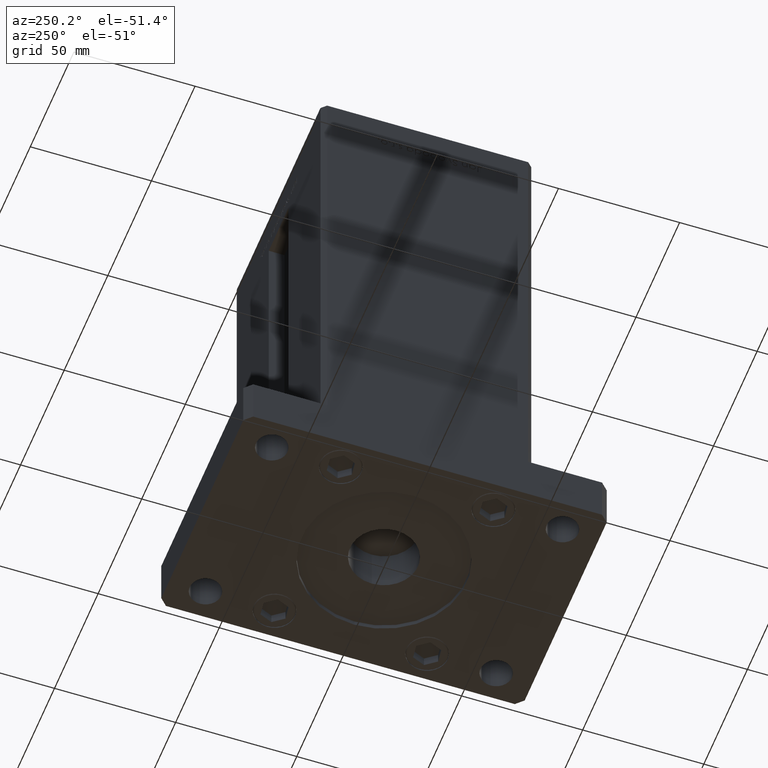
[diagram: clean part render]
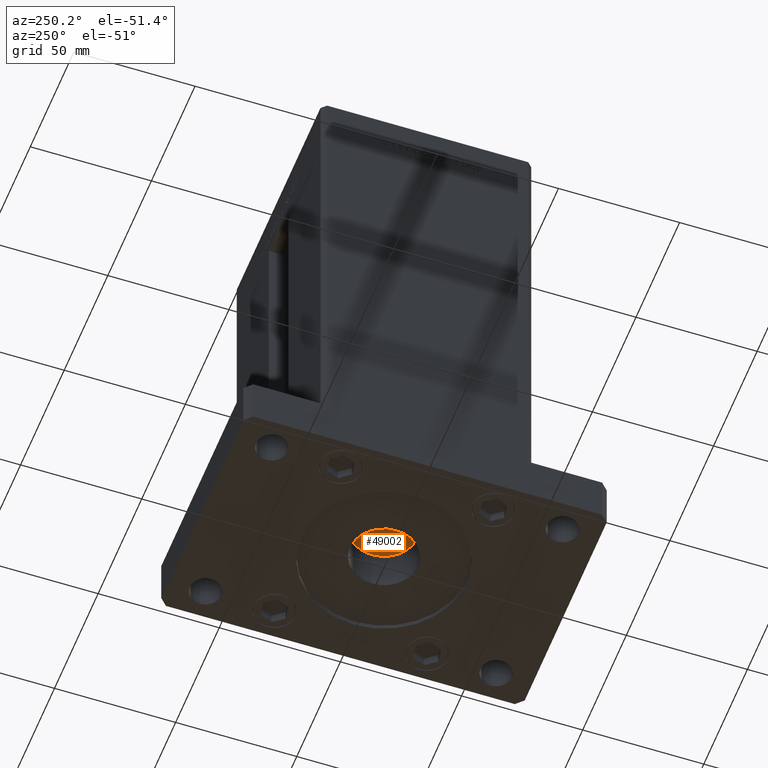
[diagram: same view with one face highlighted and labeled with its STEP entity id]
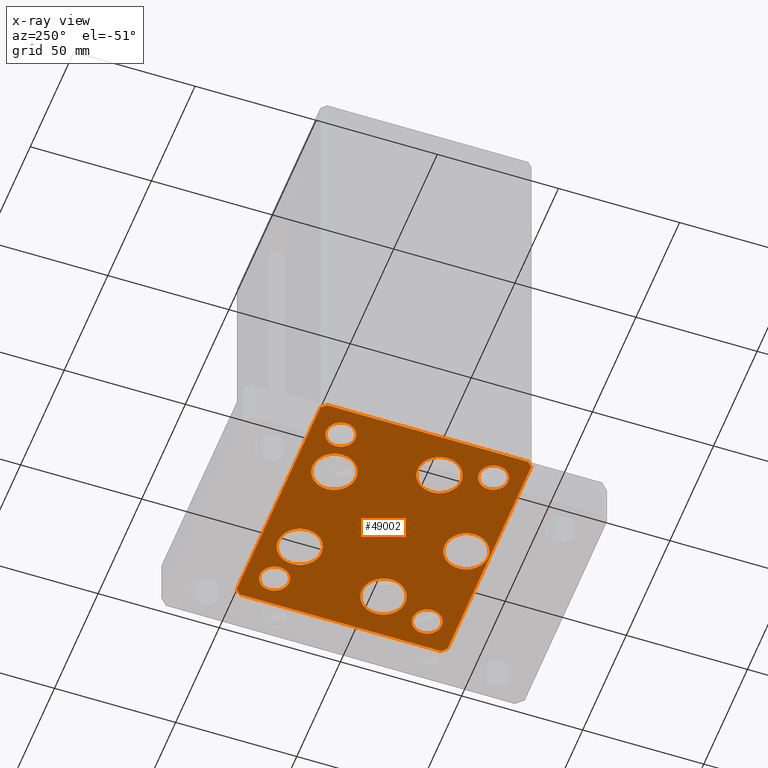
[diagram: x-ray of the same camera — body ghosted, the highlighted face saturated]
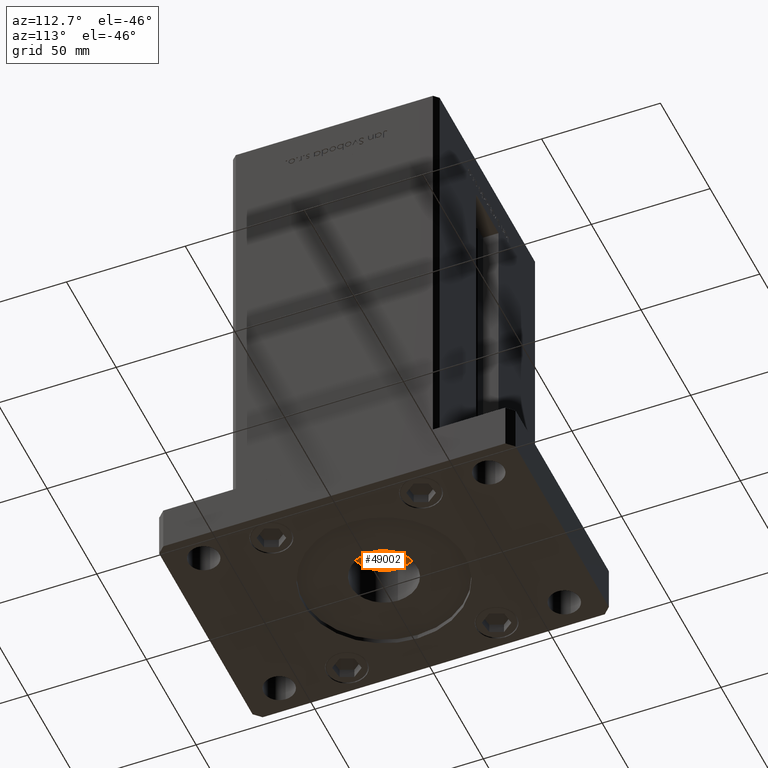
[diagram: same view with one face highlighted and labeled with its STEP entity id]
A machine part, auxiliary view. The second image highlights one B-rep face of the part: STEP entity #49002.
The next image is the same camera in x-ray: the body ghosted, the highlighted face saturated — about 0% of this face is hidden behind the body in this view.
A second angle (auxiliary view) of the same face is appended — the face is thin or edge-on in the first view.
In plain terms, the highlighted planar face has unit normal (0, 0, -1).
Its self-contained STEP definition (entity closure, byte-faithful):
#133 = DIRECTION ( 'NONE',  ( -0.7071067811865463515, -0.7071067811865487940, 0.000000000000000000 ) ) ;
#158 = CARTESIAN_POINT ( 'NONE',  ( 47.99999999999990763, 43.50000000000000000, 0.000000000000000000 ) ) ;
#187 = VERTEX_POINT ( 'NONE', #48679 ) ;
#309 = VERTEX_POINT ( 'NONE', #22583 ) ;
#524 = EDGE_CURVE ( 'NONE', #7321, #39621, #31027, .T. ) ;
#1538 = AXIS2_PLACEMENT_3D ( 'NONE', #4826, #34404, #17044 ) ;
#1663 = CARTESIAN_POINT ( 'NONE',  ( -32.05550741379015278, -11.33333333333333925, 0.000000000000000000 ) ) ;
#1705 = CARTESIAN_POINT ( 'NONE',  ( -8.999999999999996447, -34.00000000000000000, 0.000000000000000000 ) ) ;
#1864 = ORIENTED_EDGE ( 'NONE', *, *, #44948, .T. ) ;
#2038 = AXIS2_PLACEMENT_3D ( 'NONE', #33209, #12563, #20989 ) ;
#2092 = CARTESIAN_POINT ( 'NONE',  ( 19.82068048781373193, 27.62500000000000000, 0.000000000000000000 ) ) ;
#2469 = CARTESIAN_POINT ( 'NONE',  ( 23.05550741379014923, -11.33333333333333037, 0.000000000000000000 ) ) ;
#2698 = AXIS2_PLACEMENT_3D ( 'NONE', #9425, #37933, #45797 ) ;
#2813 = CIRCLE ( 'NONE', #14204, 6.000000000000005329 ) ;
#3299 = LINE ( 'NONE', #48633, #32718 ) ;
#3706 = CIRCLE ( 'NONE', #17587, 9.000000000000001776 ) ;
#3762 = ORIENTED_EDGE ( 'NONE', *, *, #18005, .F. ) ;
#4061 = DIRECTION ( 'NONE',  ( 1.000000000000000000, 0.000000000000000000, 0.000000000000000000 ) ) ;
#4392 = DIRECTION ( 'NONE',  ( 0.000000000000000000, -0.000000000000000000, -1.000000000000000000 ) ) ;
#4794 = VERTEX_POINT ( 'NONE', #14876 ) ;
#4826 = CARTESIAN_POINT ( 'NONE',  ( 4.163799117101000559E-15, -34.00000000000000000, 0.000000000000000000 ) ) ;
#5037 = FACE_BOUND ( 'NONE', #30426, .T. ) ;
#5132 = ORIENTED_EDGE ( 'NONE', *, *, #524, .T. ) ;
#5363 = CARTESIAN_POINT ( 'NONE',  ( 32.00000000000000000, -31.49999999999999289, 0.000000000000000000 ) ) ;
#5547 = CARTESIAN_POINT ( 'NONE',  ( 32.00000000000000000, 31.49999999999999289, 0.000000000000000000 ) ) ;
#5628 = DIRECTION ( 'NONE',  ( 1.000000000000000000, 0.000000000000000000, 0.000000000000000000 ) ) ;
#5721 = EDGE_CURVE ( 'NONE', #17384, #19473, #45203, .T. ) ;
#5865 = CARTESIAN_POINT ( 'NONE',  ( -41.05550741379015278, -11.33333333333333925, 0.000000000000000000 ) ) ;
#6093 = CARTESIAN_POINT ( 'NONE',  ( 0.000000000000000000, 0.000000000000000000, 0.000000000000000000 ) ) ;
#6283 = ORIENTED_EDGE ( 'NONE', *, *, #9644, .T. ) ;
#6416 = DIRECTION ( 'NONE',  ( 1.000000000000000000, 0.000000000000000000, 0.000000000000000000 ) ) ;
#6465 = CARTESIAN_POINT ( 'NONE',  ( 41.05550741379015278, -11.33333333333332860, 0.000000000000000000 ) ) ;
#6485 = DIRECTION ( 'NONE',  ( 0.000000000000000000, -0.000000000000000000, -1.000000000000000000 ) ) ;
#6631 = CIRCLE ( 'NONE', #25837, 5.999999999999998224 ) ;
#6783 = ORIENTED_EDGE ( 'NONE', *, *, #19356, .T. ) ;
#6803 = AXIS2_PLACEMENT_3D ( 'NONE', #2092, #38492, #18659 ) ;
#7200 = CIRCLE ( 'NONE', #37537, 5.999999999999998224 ) ;
#7321 = VERTEX_POINT ( 'NONE', #1705 ) ;
#7585 = ORIENTED_EDGE ( 'NONE', *, *, #5721, .T. ) ;
#7947 = CARTESIAN_POINT ( 'NONE',  ( -44.00000000000000000, 31.50000000000000000, 0.000000000000000000 ) ) ;
#7969 = ORIENTED_EDGE ( 'NONE', *, *, #10977, .T. ) ;
#8390 = VERTEX_POINT ( 'NONE', #14937 ) ;
#8440 = DIRECTION ( 'NONE',  ( 8.360113137237628665E-17, -1.000000000000000000, 0.000000000000000000 ) ) ;
#8467 = DIRECTION ( 'NONE',  ( 1.000000000000000000, 0.000000000000000000, 0.000000000000000000 ) ) ;
#8606 = EDGE_CURVE ( 'NONE', #4794, #52349, #9531, .T. ) ;
#8718 = CIRCLE ( 'NONE', #36460, 9.000000000000000000 ) ;
#8749 = AXIS2_PLACEMENT_3D ( 'NONE', #32631, #4392, #28289 ) ;
#8770 = ORIENTED_EDGE ( 'NONE', *, *, #32766, .T. ) ;
#8848 = DIRECTION ( 'NONE',  ( -1.000000000000000000, -3.614007241618350743E-16, 0.000000000000000000 ) ) ;
#9116 = FACE_BOUND ( 'NONE', #34373, .T. ) ;
#9382 = FACE_BOUND ( 'NONE', #31481, .T. ) ;
#9425 = CARTESIAN_POINT ( 'NONE',  ( 38.00000000000000000, 31.49999999999999289, 0.000000000000000000 ) ) ;
#9524 = VECTOR ( 'NONE', #11251, 1000.000000000000114 ) ;
#9531 = CIRCLE ( 'NONE', #30337, 5.999999999999998224 ) ;
#9644 = EDGE_CURVE ( 'NONE', #8390, #35909, #8718, .T. ) ;
#10457 = EDGE_CURVE ( 'NONE', #35909, #8390, #40843, .T. ) ;
#10973 = LINE ( 'NONE', #14776, #9524 ) ;
#10977 = EDGE_CURVE ( 'NONE', #187, #35301, #19905, .T. ) ;
#11079 = DIRECTION ( 'NONE',  ( 1.000000000000000000, 0.000000000000000000, 0.000000000000000000 ) ) ;
#11098 = VERTEX_POINT ( 'NONE', #2469 ) ;
#11251 = DIRECTION ( 'NONE',  ( 0.7071067811865474617, -0.7071067811865474617, 0.000000000000000000 ) ) ;
#11726 = ORIENTED_EDGE ( 'NONE', *, *, #21424, .T. ) ;
#12044 = AXIS2_PLACEMENT_3D ( 'NONE', #1663, #47003, #43727 ) ;
#12159 = CARTESIAN_POINT ( 'NONE',  ( 49.99999999999992184, 41.49999999999998579, 0.000000000000000000 ) ) ;
#12265 = CIRCLE ( 'NONE', #2698, 5.999999999999998224 ) ;
#12563 = DIRECTION ( 'NONE',  ( -0.000000000000000000, 0.000000000000000000, 1.000000000000000000 ) ) ;
#13180 = FACE_BOUND ( 'NONE', #51750, .T. ) ;
#13468 = CARTESIAN_POINT ( 'NONE',  ( -44.00000000000000000, -31.50000000000000000, 0.000000000000000000 ) ) ;
#13526 = ORIENTED_EDGE ( 'NONE', *, *, #31426, .T. ) ;
#13710 = DIRECTION ( 'NONE',  ( 1.000000000000000000, 0.000000000000000000, 0.000000000000000000 ) ) ;
#14093 = ORIENTED_EDGE ( 'NONE', *, *, #37130, .T. ) ;
#14163 = CIRCLE ( 'NONE', #2038, 5.999999999999998224 ) ;
#14204 = AXIS2_PLACEMENT_3D ( 'NONE', #41917, #16674, #49780 ) ;
#14776 = CARTESIAN_POINT ( 'NONE',  ( -50.00000000000000000, -41.50000000000000000, 0.000000000000000000 ) ) ;
#14876 = CARTESIAN_POINT ( 'NONE',  ( -32.00000000000000000, 31.50000000000000000, 0.000000000000000000 ) ) ;
#14937 = CARTESIAN_POINT ( 'NONE',  ( -10.82068048781373903, 27.62499999999999645, 0.000000000000000000 ) ) ;
#15150 = CARTESIAN_POINT ( 'NONE',  ( -19.82068048781373903, 27.62499999999999645, 0.000000000000000000 ) ) ;
#15630 = CARTESIAN_POINT ( 'NONE',  ( -48.00000000000000711, 43.49999999999996447, 0.000000000000000000 ) ) ;
#15687 = VECTOR ( 'NONE', #24259, 1000.000000000000000 ) ;
#16145 = EDGE_LOOP ( 'NONE', ( #26928, #11726 ) ) ;
#16342 = CARTESIAN_POINT ( 'NONE',  ( -32.05550741379015278, -11.33333333333333925, 0.000000000000000000 ) ) ;
#16496 = CARTESIAN_POINT ( 'NONE',  ( -19.82068048781373903, 27.62499999999999645, 0.000000000000000000 ) ) ;
#16674 = DIRECTION ( 'NONE',  ( 0.000000000000000000, -0.000000000000000000, -1.000000000000000000 ) ) ;
#17044 = DIRECTION ( 'NONE',  ( 1.000000000000000000, 0.000000000000000000, 0.000000000000000000 ) ) ;
#17073 = VECTOR ( 'NONE', #23434, 1000.000000000000000 ) ;
#17236 = CIRCLE ( 'NONE', #12044, 9.000000000000001776 ) ;
#17384 = VERTEX_POINT ( 'NONE', #19508 ) ;
#17587 = AXIS2_PLACEMENT_3D ( 'NONE', #43674, #6485, #48019 ) ;
#17653 = ORIENTED_EDGE ( 'NONE', *, *, #51005, .T. ) ;
#17964 = CARTESIAN_POINT ( 'NONE',  ( 47.99999999999999289, -43.50000000000001421, 0.000000000000000000 ) ) ;
#18005 = EDGE_CURVE ( 'NONE', #52349, #4794, #14163, .T. ) ;
#18659 = DIRECTION ( 'NONE',  ( 1.000000000000000000, 0.000000000000000000, 0.000000000000000000 ) ) ;
#19033 = LINE ( 'NONE', #17964, #46687 ) ;
#19356 = EDGE_CURVE ( 'NONE', #309, #32256, #2813, .T. ) ;
#19357 = CARTESIAN_POINT ( 'NONE',  ( -47.99999999999999289, -43.50000000000001421, 0.000000000000000000 ) ) ;
#19473 = VERTEX_POINT ( 'NONE', #34301 ) ;
#19508 = CARTESIAN_POINT ( 'NONE',  ( -48.00000000000000711, 43.49999999999996447, 0.000000000000000000 ) ) ;
#19905 = LINE ( 'NONE', #44866, #15687 ) ;
#19949 = AXIS2_PLACEMENT_3D ( 'NONE', #16342, #48654, #20154 ) ;
#20154 = DIRECTION ( 'NONE',  ( 1.000000000000000000, 0.000000000000000000, 0.000000000000000000 ) ) ;
#20191 = ORIENTED_EDGE ( 'NONE', *, *, #41209, .T. ) ;
#20509 = CARTESIAN_POINT ( 'NONE',  ( 47.99999999999999289, -43.50000000000001421, 0.000000000000000000 ) ) ;
#20691 = VECTOR ( 'NONE', #8848, 1000.000000000000000 ) ;
#20790 = CARTESIAN_POINT ( 'NONE',  ( -47.99999999999999289, -43.50000000000001421, 0.000000000000000000 ) ) ;
#20863 = CARTESIAN_POINT ( 'NONE',  ( 38.00000000000000000, -31.49999999999999289, 0.000000000000000000 ) ) ;
#20989 = DIRECTION ( 'NONE',  ( 1.000000000000000000, 0.000000000000000000, 0.000000000000000000 ) ) ;
#21424 = EDGE_CURVE ( 'NONE', #27898, #11098, #3706, .T. ) ;
#21516 = CARTESIAN_POINT ( 'NONE',  ( 47.99999999999990763, 43.50000000000000000, 0.000000000000000000 ) ) ;
#21619 = EDGE_CURVE ( 'NONE', #25599, #28382, #7200, .T. ) ;
#21724 = ORIENTED_EDGE ( 'NONE', *, *, #41195, .T. ) ;
#22203 = CARTESIAN_POINT ( 'NONE',  ( 38.00000000000000000, 31.49999999999999289, 0.000000000000000000 ) ) ;
#22583 = CARTESIAN_POINT ( 'NONE',  ( -31.99999999999998579, -31.50000000000000000, 0.000000000000000000 ) ) ;
#22671 = FACE_BOUND ( 'NONE', #40717, .T. ) ;
#23342 = DIRECTION ( 'NONE',  ( 0.000000000000000000, -0.000000000000000000, -1.000000000000000000 ) ) ;
#23434 = DIRECTION ( 'NONE',  ( 1.000000000000000000, 0.000000000000000000, 0.000000000000000000 ) ) ;
#23821 = CARTESIAN_POINT ( 'NONE',  ( 49.99999999999992184, 41.49999999999998579, 0.000000000000000000 ) ) ;
#24021 = CIRCLE ( 'NONE', #37883, 9.000000000000000000 ) ;
#24259 = DIRECTION ( 'NONE',  ( -1.003213576468515193E-15, 1.000000000000000000, 0.000000000000000000 ) ) ;
#24332 = DIRECTION ( 'NONE',  ( 0.000000000000000000, -0.000000000000000000, -1.000000000000000000 ) ) ;
#24386 = DIRECTION ( 'NONE',  ( 0.000000000000000000, -0.000000000000000000, -1.000000000000000000 ) ) ;
#24872 = AXIS2_PLACEMENT_3D ( 'NONE', #30683, #23342, #48034 ) ;
#25599 = VERTEX_POINT ( 'NONE', #39033 ) ;
#25837 = AXIS2_PLACEMENT_3D ( 'NONE', #35193, #40348, #6416 ) ;
#26056 = ORIENTED_EDGE ( 'NONE', *, *, #10457, .T. ) ;
#26078 = EDGE_LOOP ( 'NONE', ( #35341, #49097 ) ) ;
#26164 = VERTEX_POINT ( 'NONE', #48043 ) ;
#26217 = FACE_BOUND ( 'NONE', #31921, .T. ) ;
#26928 = ORIENTED_EDGE ( 'NONE', *, *, #35521, .T. ) ;
#27770 = LINE ( 'NONE', #19357, #17073 ) ;
#27898 = VERTEX_POINT ( 'NONE', #6465 ) ;
#28289 = DIRECTION ( 'NONE',  ( 1.000000000000000000, 0.000000000000000000, 0.000000000000000000 ) ) ;
#28293 = VERTEX_POINT ( 'NONE', #20509 ) ;
#28382 = VERTEX_POINT ( 'NONE', #5547 ) ;
#28412 = DIRECTION ( 'NONE',  ( -0.7071067811865474617, 0.7071067811865474617, 0.000000000000000000 ) ) ;
#28660 = CARTESIAN_POINT ( 'NONE',  ( 32.05550741379015278, -11.33333333333333037, 0.000000000000000000 ) ) ;
#29148 = ORIENTED_EDGE ( 'NONE', *, *, #31844, .T. ) ;
#29745 = DIRECTION ( 'NONE',  ( -0.000000000000000000, 0.000000000000000000, 1.000000000000000000 ) ) ;
#30337 = AXIS2_PLACEMENT_3D ( 'NONE', #36642, #33376, #4061 ) ;
#30426 = EDGE_LOOP ( 'NONE', ( #43926, #53046 ) ) ;
#30683 = CARTESIAN_POINT ( 'NONE',  ( -37.99999999999999289, -31.50000000000000000, 0.000000000000000000 ) ) ;
#30717 = DIRECTION ( 'NONE',  ( 0.7071067811865463515, 0.7071067811865487940, 0.000000000000000000 ) ) ;
#31027 = CIRCLE ( 'NONE', #1538, 9.000000000000000000 ) ;
#31426 = EDGE_CURVE ( 'NONE', #32256, #309, #36985, .T. ) ;
#31481 = EDGE_LOOP ( 'NONE', ( #17653, #42231 ) ) ;
#31517 = VERTEX_POINT ( 'NONE', #35819 ) ;
#31550 = ORIENTED_EDGE ( 'NONE', *, *, #8606, .F. ) ;
#31844 = EDGE_CURVE ( 'NONE', #35301, #53297, #49034, .T. ) ;
#31904 = AXIS2_PLACEMENT_3D ( 'NONE', #28660, #24332, #32195 ) ;
#31921 = EDGE_LOOP ( 'NONE', ( #31550, #3762 ) ) ;
#32195 = DIRECTION ( 'NONE',  ( 1.000000000000000000, 0.000000000000000000, 0.000000000000000000 ) ) ;
#32256 = VERTEX_POINT ( 'NONE', #13468 ) ;
#32631 = CARTESIAN_POINT ( 'NONE',  ( 19.82068048781373193, 27.62500000000000000, 0.000000000000000000 ) ) ;
#32718 = VECTOR ( 'NONE', #8440, 1000.000000000000000 ) ;
#32766 = EDGE_CURVE ( 'NONE', #35532, #28293, #27770, .T. ) ;
#32863 = EDGE_CURVE ( 'NONE', #39621, #7321, #24021, .T. ) ;
#32933 = AXIS2_PLACEMENT_3D ( 'NONE', #6093, #29745, #13710 ) ;
#33086 = VERTEX_POINT ( 'NONE', #38721 ) ;
#33102 = ORIENTED_EDGE ( 'NONE', *, *, #48314, .T. ) ;
#33209 = CARTESIAN_POINT ( 'NONE',  ( -38.00000000000000000, 31.50000000000000000, 0.000000000000000000 ) ) ;
#33247 = VERTEX_POINT ( 'NONE', #33262 ) ;
#33262 = CARTESIAN_POINT ( 'NONE',  ( -50.00000000000000000, -41.50000000000000000, 0.000000000000000000 ) ) ;
#33376 = DIRECTION ( 'NONE',  ( -0.000000000000000000, 0.000000000000000000, 1.000000000000000000 ) ) ;
#33446 = DIRECTION ( 'NONE',  ( 0.000000000000000000, -0.000000000000000000, -1.000000000000000000 ) ) ;
#34301 = CARTESIAN_POINT ( 'NONE',  ( -50.00000000000000711, 41.49999999999995026, 0.000000000000000000 ) ) ;
#34373 = EDGE_LOOP ( 'NONE', ( #26056, #6283 ) ) ;
#34404 = DIRECTION ( 'NONE',  ( 0.000000000000000000, -0.000000000000000000, -1.000000000000000000 ) ) ;
#35193 = CARTESIAN_POINT ( 'NONE',  ( 38.00000000000000000, -31.49999999999999289, 0.000000000000000000 ) ) ;
#35301 = VERTEX_POINT ( 'NONE', #12159 ) ;
#35341 = ORIENTED_EDGE ( 'NONE', *, *, #21619, .F. ) ;
#35447 = EDGE_CURVE ( 'NONE', #38056, #26164, #6631, .T. ) ;
#35521 = EDGE_CURVE ( 'NONE', #11098, #27898, #53552, .T. ) ;
#35532 = VERTEX_POINT ( 'NONE', #20790 ) ;
#35819 = CARTESIAN_POINT ( 'NONE',  ( 28.82068048781372838, 27.62500000000000000, 0.000000000000000000 ) ) ;
#35909 = VERTEX_POINT ( 'NONE', #37809 ) ;
#36460 = AXIS2_PLACEMENT_3D ( 'NONE', #15150, #44194, #11079 ) ;
#36642 = CARTESIAN_POINT ( 'NONE',  ( -38.00000000000000000, 31.50000000000000000, 0.000000000000000000 ) ) ;
#36713 = CARTESIAN_POINT ( 'NONE',  ( 4.163799117101000559E-15, -34.00000000000000000, 0.000000000000000000 ) ) ;
#36985 = CIRCLE ( 'NONE', #24872, 6.000000000000005329 ) ;
#37084 = LINE ( 'NONE', #158, #20691 ) ;
#37130 = EDGE_CURVE ( 'NONE', #19473, #33247, #3299, .T. ) ;
#37537 = AXIS2_PLACEMENT_3D ( 'NONE', #22203, #39280, #5628 ) ;
#37809 = CARTESIAN_POINT ( 'NONE',  ( -28.82068048781373548, 27.62499999999999645, 0.000000000000000000 ) ) ;
#37883 = AXIS2_PLACEMENT_3D ( 'NONE', #36713, #33446, #8467 ) ;
#37933 = DIRECTION ( 'NONE',  ( -0.000000000000000000, 0.000000000000000000, 1.000000000000000000 ) ) ;
#38056 = VERTEX_POINT ( 'NONE', #5363 ) ;
#38492 = DIRECTION ( 'NONE',  ( 0.000000000000000000, -0.000000000000000000, -1.000000000000000000 ) ) ;
#38721 = CARTESIAN_POINT ( 'NONE',  ( 10.82068048781373193, 27.62500000000000000, 0.000000000000000000 ) ) ;
#38745 = EDGE_CURVE ( 'NONE', #26164, #38056, #44122, .T. ) ;
#39033 = CARTESIAN_POINT ( 'NONE',  ( 44.00000000000000000, 31.49999999999999289, 0.000000000000000000 ) ) ;
#39094 = AXIS2_PLACEMENT_3D ( 'NONE', #16496, #24386, #40932 ) ;
#39280 = DIRECTION ( 'NONE',  ( -0.000000000000000000, 0.000000000000000000, 1.000000000000000000 ) ) ;
#39621 = VERTEX_POINT ( 'NONE', #51886 ) ;
#40348 = DIRECTION ( 'NONE',  ( 0.000000000000000000, -0.000000000000000000, -1.000000000000000000 ) ) ;
#40453 = VERTEX_POINT ( 'NONE', #5865 ) ;
#40717 = EDGE_LOOP ( 'NONE', ( #21724, #33102 ) ) ;
#40843 = CIRCLE ( 'NONE', #39094, 9.000000000000000000 ) ;
#40932 = DIRECTION ( 'NONE',  ( 1.000000000000000000, 0.000000000000000000, 0.000000000000000000 ) ) ;
#41195 = EDGE_CURVE ( 'NONE', #40453, #52687, #17236, .T. ) ;
#41209 = EDGE_CURVE ( 'NONE', #28293, #187, #19033, .T. ) ;
#41246 = EDGE_LOOP ( 'NONE', ( #6783, #13526 ) ) ;
#41613 = CIRCLE ( 'NONE', #19949, 9.000000000000001776 ) ;
#41917 = CARTESIAN_POINT ( 'NONE',  ( -37.99999999999999289, -31.50000000000000000, 0.000000000000000000 ) ) ;
#42231 = ORIENTED_EDGE ( 'NONE', *, *, #44768, .T. ) ;
#43015 = FACE_BOUND ( 'NONE', #26078, .T. ) ;
#43571 = EDGE_LOOP ( 'NONE', ( #52718, #8770, #20191, #7969, #29148, #1864, #7585, #14093 ) ) ;
#43674 = CARTESIAN_POINT ( 'NONE',  ( 32.05550741379015278, -11.33333333333333037, 0.000000000000000000 ) ) ;
#43727 = DIRECTION ( 'NONE',  ( 1.000000000000000000, 0.000000000000000000, 0.000000000000000000 ) ) ;
#43926 = ORIENTED_EDGE ( 'NONE', *, *, #38745, .T. ) ;
#44122 = CIRCLE ( 'NONE', #49311, 5.999999999999998224 ) ;
#44194 = DIRECTION ( 'NONE',  ( 0.000000000000000000, -0.000000000000000000, -1.000000000000000000 ) ) ;
#44768 = EDGE_CURVE ( 'NONE', #31517, #33086, #49258, .T. ) ;
#44866 = CARTESIAN_POINT ( 'NONE',  ( 50.00000000000000000, -41.49999999999999289, 0.000000000000000000 ) ) ;
#44948 = EDGE_CURVE ( 'NONE', #53297, #17384, #37084, .T. ) ;
#45203 = LINE ( 'NONE', #15630, #49849 ) ;
#45551 = DIRECTION ( 'NONE',  ( 0.000000000000000000, -0.000000000000000000, -1.000000000000000000 ) ) ;
#45797 = DIRECTION ( 'NONE',  ( 1.000000000000000000, 0.000000000000000000, 0.000000000000000000 ) ) ;
#46490 = ORIENTED_EDGE ( 'NONE', *, *, #32863, .T. ) ;
#46687 = VECTOR ( 'NONE', #30717, 1000.000000000000000 ) ;
#46830 = FACE_BOUND ( 'NONE', #41246, .T. ) ;
#47003 = DIRECTION ( 'NONE',  ( 0.000000000000000000, -0.000000000000000000, -1.000000000000000000 ) ) ;
#47093 = PLANE ( 'NONE',  #32933 ) ;
#48019 = DIRECTION ( 'NONE',  ( 1.000000000000000000, 0.000000000000000000, 0.000000000000000000 ) ) ;
#48034 = DIRECTION ( 'NONE',  ( 1.000000000000000000, 0.000000000000000000, 0.000000000000000000 ) ) ;
#48043 = CARTESIAN_POINT ( 'NONE',  ( 44.00000000000000000, -31.49999999999999289, 0.000000000000000000 ) ) ;
#48314 = EDGE_CURVE ( 'NONE', #52687, #40453, #41613, .T. ) ;
#48633 = CARTESIAN_POINT ( 'NONE',  ( -50.00000000000000711, 41.49999999999995026, 0.000000000000000000 ) ) ;
#48654 = DIRECTION ( 'NONE',  ( 0.000000000000000000, -0.000000000000000000, -1.000000000000000000 ) ) ;
#48679 = CARTESIAN_POINT ( 'NONE',  ( 50.00000000000000000, -41.49999999999999289, 0.000000000000000000 ) ) ;
#49002 = ADVANCED_FACE ( 'NONE', ( #9116, #9382, #50885, #13180, #22671, #43015, #5037, #26217, #50356, #46830 ), #47093, .T. ) ;
#49034 = LINE ( 'NONE', #23821, #51729 ) ;
#49044 = EDGE_CURVE ( 'NONE', #33247, #35532, #10973, .T. ) ;
#49083 = DIRECTION ( 'NONE',  ( 1.000000000000000000, 0.000000000000000000, 0.000000000000000000 ) ) ;
#49097 = ORIENTED_EDGE ( 'NONE', *, *, #52915, .F. ) ;
#49258 = CIRCLE ( 'NONE', #6803, 8.999999999999998224 ) ;
#49311 = AXIS2_PLACEMENT_3D ( 'NONE', #20863, #45551, #49083 ) ;
#49780 = DIRECTION ( 'NONE',  ( 1.000000000000000000, 0.000000000000000000, 0.000000000000000000 ) ) ;
#49849 = VECTOR ( 'NONE', #133, 1000.000000000000000 ) ;
#49931 = CARTESIAN_POINT ( 'NONE',  ( -23.05550741379014923, -11.33333333333333748, 0.000000000000000000 ) ) ;
#50356 = FACE_OUTER_BOUND ( 'NONE', #43571, .T. ) ;
#50885 = FACE_BOUND ( 'NONE', #16145, .T. ) ;
#51005 = EDGE_CURVE ( 'NONE', #33086, #31517, #52942, .T. ) ;
#51729 = VECTOR ( 'NONE', #28412, 1000.000000000000114 ) ;
#51750 = EDGE_LOOP ( 'NONE', ( #5132, #46490 ) ) ;
#51886 = CARTESIAN_POINT ( 'NONE',  ( 9.000000000000003553, -34.00000000000000000, 0.000000000000000000 ) ) ;
#52349 = VERTEX_POINT ( 'NONE', #7947 ) ;
#52687 = VERTEX_POINT ( 'NONE', #49931 ) ;
#52718 = ORIENTED_EDGE ( 'NONE', *, *, #49044, .T. ) ;
#52915 = EDGE_CURVE ( 'NONE', #28382, #25599, #12265, .T. ) ;
#52942 = CIRCLE ( 'NONE', #8749, 8.999999999999998224 ) ;
#53046 = ORIENTED_EDGE ( 'NONE', *, *, #35447, .T. ) ;
#53297 = VERTEX_POINT ( 'NONE', #21516 ) ;
#53552 = CIRCLE ( 'NONE', #31904, 9.000000000000001776 ) ;